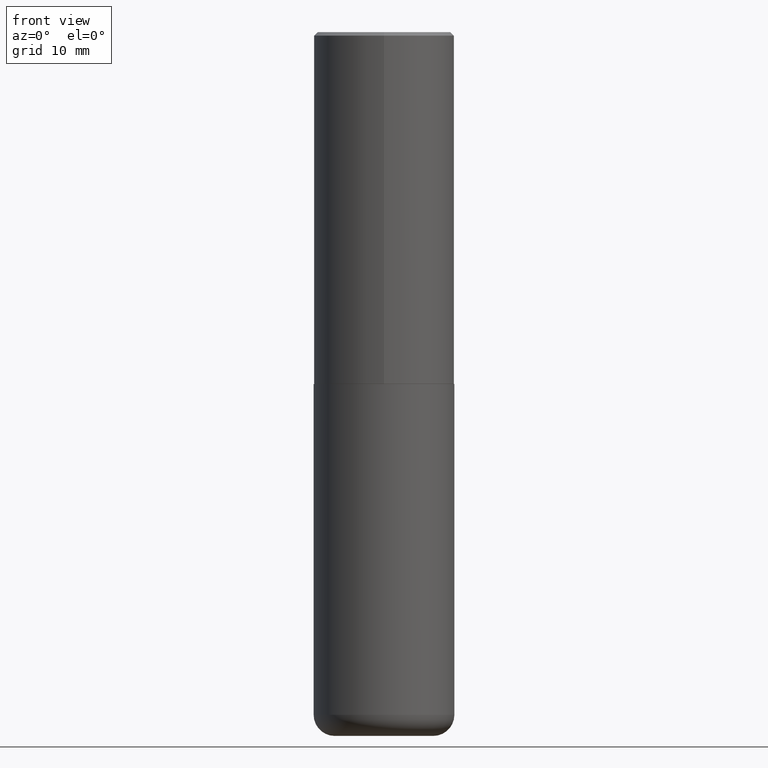
[diagram: clean part render]
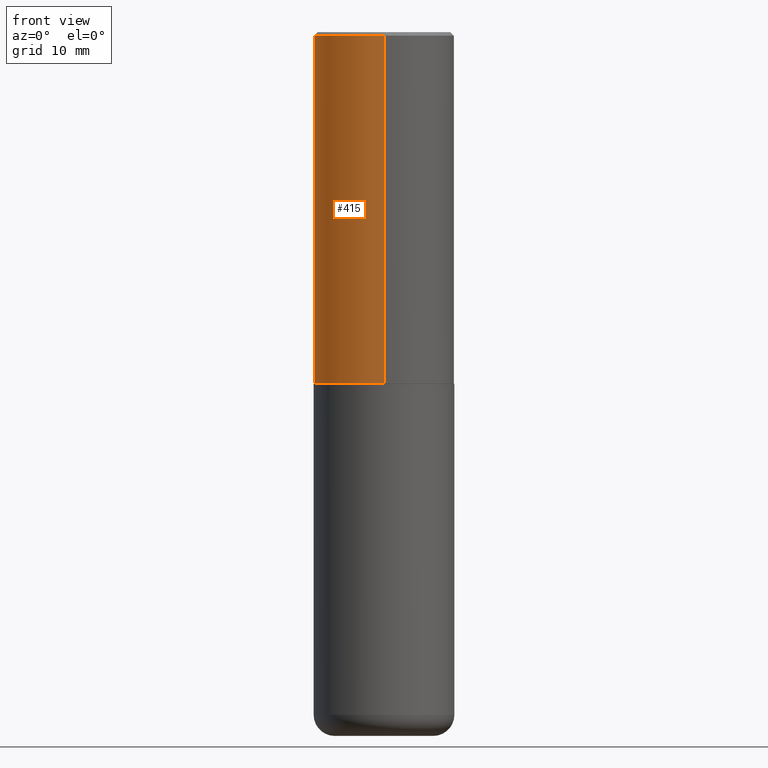
[diagram: same view with one face highlighted and labeled with its STEP entity id]
A machine part, front view. The second image highlights one B-rep face of the part: STEP entity #415.
In plain terms, the highlighted cylindrical surface (partial cylindrical patch) has radius 10 mm, axis along (-0, 0, 1).
Its self-contained STEP definition (entity closure, byte-faithful):
#2 = DIRECTION ( 'NONE',  ( -6.982962677686265133E-15, -1.000000000000000000, 3.491137977679279424E-15 ) ) ;
#5 = DIRECTION ( 'NONE',  ( -2.447902336346030930E-29, 3.487996385144809755E-15, 1.000000000000000000 ) ) ;
#11 = VERTEX_POINT ( 'NONE', #177 ) ;
#39 = ORIENTED_EDGE ( 'NONE', *, *, #317, .T. ) ;
#44 = CIRCLE ( 'NONE', #313, 0.3937000000000000499 ) ;
#65 = EDGE_CURVE ( 'NONE', #11, #104, #266, .T. ) ;
#70 = CARTESIAN_POINT ( 'NONE',  ( -2.700978061722651252E-15, -0.3937000000000001054, -0.01999999999999870978 ) ) ;
#97 = AXIS2_PLACEMENT_3D ( 'NONE', #156, #284, #247 ) ;
#104 = VERTEX_POINT ( 'NONE', #70 ) ;
#127 = EDGE_LOOP ( 'NONE', ( #275, #39, #316, #329 ) ) ;
#145 = EDGE_CURVE ( 'NONE', #269, #104, #44, .T. ) ;
#156 = CARTESIAN_POINT ( 'NONE',  ( 4.816247846760815671E-29, -6.862632887772413316E-15, -1.967500000000000027 ) ) ;
#164 = DIRECTION ( 'NONE',  ( -2.447902336346030930E-29, 3.487996385144809360E-15, 1.000000000000000000 ) ) ;
#177 = CARTESIAN_POINT ( 'NONE',  ( -2.749192406205036674E-15, -0.3937000000000070998, -1.967499999999998694 ) ) ;
#187 = LINE ( 'NONE', #281, #331 ) ;
#198 = CYLINDRICAL_SURFACE ( 'NONE', #367, 0.3937000000000001609 ) ;
#212 = CARTESIAN_POINT ( 'NONE',  ( 2.797406750687540030E-15, 0.3936999999999934441, -1.967500000000001359 ) ) ;
#224 = DIRECTION ( 'NONE',  ( -2.447902336346030930E-29, 3.487996385144809755E-15, 1.000000000000000000 ) ) ;
#236 = CARTESIAN_POINT ( 'NONE',  ( 0.000000000000000000, 0.000000000000000000, 0.000000000000000000 ) ) ;
#247 = DIRECTION ( 'NONE',  ( -6.982962677686265922E-15, -1.000000000000000000, 3.469453890861393601E-15 ) ) ;
#260 = VERTEX_POINT ( 'NONE', #212 ) ;
#266 = LINE ( 'NONE', #358, #270 ) ;
#269 = VERTEX_POINT ( 'NONE', #343 ) ;
#270 = VECTOR ( 'NONE', #164, 39.37007874015748143 ) ;
#275 = ORIENTED_EDGE ( 'NONE', *, *, #328, .F. ) ;
#281 = CARTESIAN_POINT ( 'NONE',  ( 2.797406750687515181E-15, 0.3937000000000001609, -1.373224176831512065E-15 ) ) ;
#284 = DIRECTION ( 'NONE',  ( -2.447902336346030930E-29, 3.487996385144809755E-15, 1.000000000000000000 ) ) ;
#290 = CARTESIAN_POINT ( 'NONE',  ( 4.895804672692082949E-31, -6.975992770289649092E-17, -0.02000000000000008715 ) ) ;
#292 = FACE_OUTER_BOUND ( 'NONE', #127, .T. ) ;
#313 = AXIS2_PLACEMENT_3D ( 'NONE', #290, #224, #2 ) ;
#316 = ORIENTED_EDGE ( 'NONE', *, *, #65, .T. ) ;
#317 = EDGE_CURVE ( 'NONE', #260, #11, #361, .T. ) ;
#328 = EDGE_CURVE ( 'NONE', #260, #269, #187, .T. ) ;
#329 = ORIENTED_EDGE ( 'NONE', *, *, #145, .F. ) ;
#331 = VECTOR ( 'NONE', #416, 39.37007874015748143 ) ;
#343 = CARTESIAN_POINT ( 'NONE',  ( 2.749192406205083217E-15, 0.3936999999999999389, -0.02000000000000146105 ) ) ;
#358 = CARTESIAN_POINT ( 'NONE',  ( -2.749192406205084005E-15, -0.3937000000000001609, 1.373224176831512065E-15 ) ) ;
#361 = CIRCLE ( 'NONE', #97, 0.3937000000000002720 ) ;
#364 = DIRECTION ( 'NONE',  ( -6.982962677686265922E-15, -1.000000000000000000, 3.487996385144809360E-15 ) ) ;
#367 = AXIS2_PLACEMENT_3D ( 'NONE', #236, #5, #364 ) ;
#415 = ADVANCED_FACE ( 'NONE', ( #292 ), #198, .T. ) ;
#416 = DIRECTION ( 'NONE',  ( -2.447902336346030930E-29, 3.487996385144809360E-15, 1.000000000000000000 ) ) ;